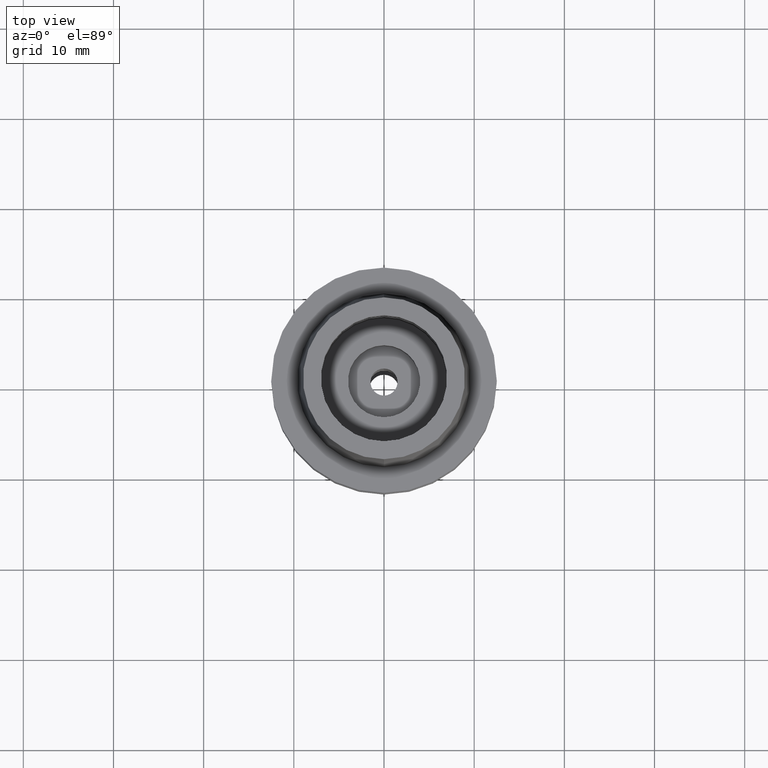
[diagram: clean part render]
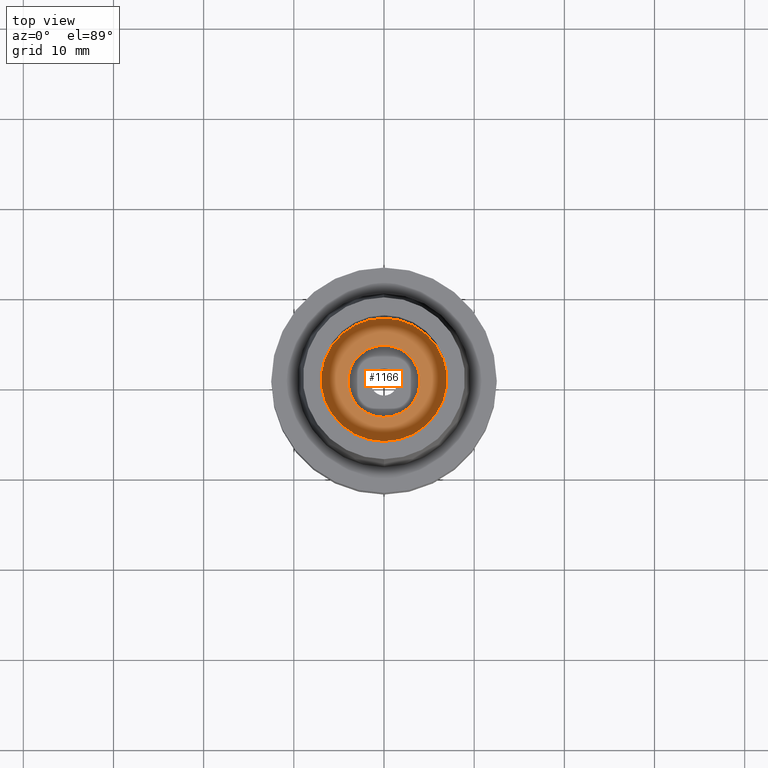
[diagram: same view with one face highlighted and labeled with its STEP entity id]
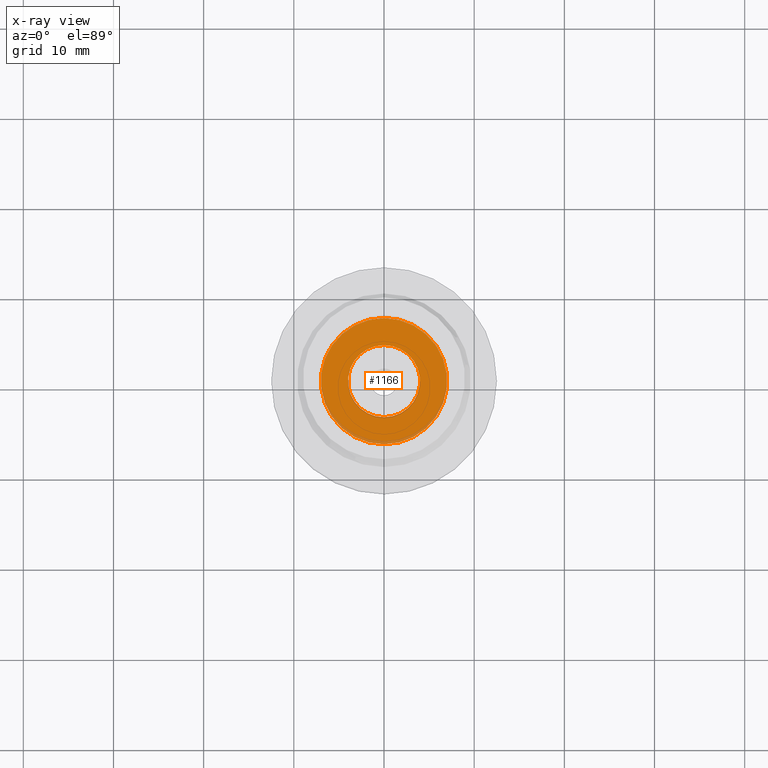
[diagram: x-ray of the same camera — body ghosted, the highlighted face saturated]
A machine part, top view. The second image highlights one B-rep face of the part: STEP entity #1166.
The next image is the same camera in x-ray: the body ghosted, the highlighted face saturated — about 4% of this face is hidden behind the body in this view.
In plain terms, the highlighted planar face has unit normal (0, 0, 1).
Its self-contained STEP definition (entity closure, byte-faithful):
#18 = VERTEX_POINT ( 'NONE', #370 ) ;
#115 = ORIENTED_EDGE ( 'NONE', *, *, #2100, .F. ) ;
#162 = VERTEX_POINT ( 'NONE', #1304 ) ;
#313 = DIRECTION ( 'NONE',  ( 1.000000000000000000, 0.0000000000000000000, 0.0000000000000000000 ) ) ;
#317 = DIRECTION ( 'NONE',  ( 0.0000000000000000000, -1.000000000000000000, 0.0000000000000000000 ) ) ;
#318 = VERTEX_POINT ( 'NONE', #2170 ) ;
#370 = CARTESIAN_POINT ( 'NONE',  ( 0.0000000000000000000, -4.000000000000000000, -5.950000000000000178 ) ) ;
#434 = DIRECTION ( 'NONE',  ( 0.0000000000000000000, 0.0000000000000000000, 1.000000000000000000 ) ) ;
#511 = CARTESIAN_POINT ( 'NONE',  ( 0.0000000000000000000, 0.0000000000000000000, -5.950000000000000178 ) ) ;
#542 = ORIENTED_EDGE ( 'NONE', *, *, #1964, .F. ) ;
#597 = DIRECTION ( 'NONE',  ( 0.0000000000000000000, 0.0000000000000000000, 1.000000000000000000 ) ) ;
#637 = EDGE_LOOP ( 'NONE', ( #2056, #1909 ) ) ;
#662 = CARTESIAN_POINT ( 'NONE',  ( 0.0000000000000000000, 0.0000000000000000000, -5.950000000000000178 ) ) ;
#711 = DIRECTION ( 'NONE',  ( 0.0000000000000000000, 0.0000000000000000000, -1.000000000000000000 ) ) ;
#719 = FACE_OUTER_BOUND ( 'NONE', #637, .T. ) ;
#776 = EDGE_LOOP ( 'NONE', ( #542, #115 ) ) ;
#837 = AXIS2_PLACEMENT_3D ( 'NONE', #511, #1342, #313 ) ;
#1057 = DIRECTION ( 'NONE',  ( 0.0000000000000000000, -1.000000000000000000, 0.0000000000000000000 ) ) ;
#1065 = CIRCLE ( 'NONE', #2290, 7.000000000000000000 ) ;
#1107 = AXIS2_PLACEMENT_3D ( 'NONE', #1616, #597, #1363 ) ;
#1166 = ADVANCED_FACE ( 'NONE', ( #719, #1981 ), #2381, .T. ) ;
#1280 = CIRCLE ( 'NONE', #1788, 4.000000000000000000 ) ;
#1304 = CARTESIAN_POINT ( 'NONE',  ( 0.0000000000000000000, 7.000000000000000000, -5.950000000000000178 ) ) ;
#1323 = CARTESIAN_POINT ( 'NONE',  ( 0.0000000000000000000, 4.000000000000000000, -5.950000000000000178 ) ) ;
#1342 = DIRECTION ( 'NONE',  ( 0.0000000000000000000, 0.0000000000000000000, 1.000000000000000000 ) ) ;
#1363 = DIRECTION ( 'NONE',  ( 0.0000000000000000000, 1.000000000000000000, 0.0000000000000000000 ) ) ;
#1499 = CIRCLE ( 'NONE', #2415, 7.000000000000000000 ) ;
#1537 = CARTESIAN_POINT ( 'NONE',  ( 0.0000000000000000000, 0.0000000000000000000, -5.950000000000000178 ) ) ;
#1616 = CARTESIAN_POINT ( 'NONE',  ( 0.0000000000000000000, 0.0000000000000000000, -5.950000000000000178 ) ) ;
#1627 = DIRECTION ( 'NONE',  ( 0.0000000000000000000, 1.000000000000000000, 0.0000000000000000000 ) ) ;
#1788 = AXIS2_PLACEMENT_3D ( 'NONE', #662, #434, #1057 ) ;
#1909 = ORIENTED_EDGE ( 'NONE', *, *, #2311, .F. ) ;
#1964 = EDGE_CURVE ( 'NONE', #2419, #18, #2571, .T. ) ;
#1981 = FACE_BOUND ( 'NONE', #776, .T. ) ;
#2056 = ORIENTED_EDGE ( 'NONE', *, *, #2597, .F. ) ;
#2100 = EDGE_CURVE ( 'NONE', #18, #2419, #1280, .T. ) ;
#2170 = CARTESIAN_POINT ( 'NONE',  ( 0.0000000000000000000, -7.000000000000000000, -5.950000000000000178 ) ) ;
#2197 = CARTESIAN_POINT ( 'NONE',  ( 0.0000000000000000000, 0.0000000000000000000, -5.950000000000000178 ) ) ;
#2290 = AXIS2_PLACEMENT_3D ( 'NONE', #2197, #2440, #1627 ) ;
#2311 = EDGE_CURVE ( 'NONE', #318, #162, #1499, .T. ) ;
#2381 = PLANE ( 'NONE',  #837 ) ;
#2415 = AXIS2_PLACEMENT_3D ( 'NONE', #1537, #711, #317 ) ;
#2419 = VERTEX_POINT ( 'NONE', #1323 ) ;
#2440 = DIRECTION ( 'NONE',  ( 0.0000000000000000000, 0.0000000000000000000, -1.000000000000000000 ) ) ;
#2571 = CIRCLE ( 'NONE', #1107, 4.000000000000000000 ) ;
#2597 = EDGE_CURVE ( 'NONE', #162, #318, #1065, .T. ) ;